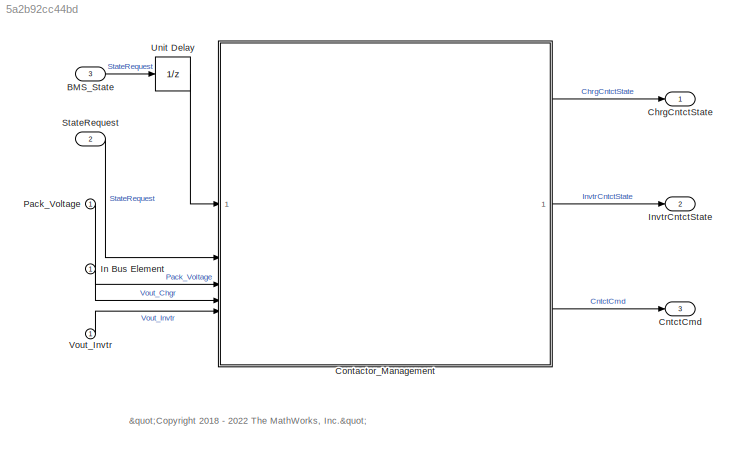
MODEL slx_5a2b92cc44bd
KIND model
BLOCK [Inport] BMS_State
  OutDataTypeStr = Enum: BMS_State_Enum
  Port = 3
  PortDimensions = 1
  SampleTime = [0.10000000000000001,0]
  SamplingMode = Sample based
  SignalType = real
BLOCK [Outport] ChrgCntctState
BLOCK [Outport] CntctCmd
  BusOutputAsStruct = on
  OutDataTypeStr = Bus: CntctCmd
  Port = 3
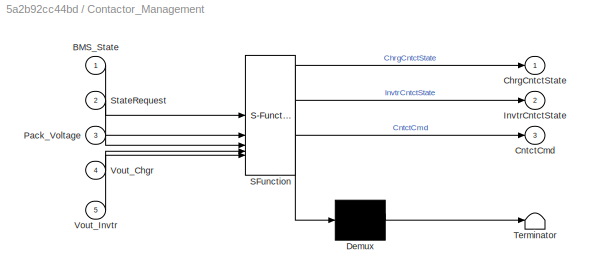
BLOCK [SubSystem] Contactor_Management
  ErrorFcn = Stateflow.Translate.translate
  PermitHierarchicalResolution = ExplicitOnly
  SFBlockType = Chart
  TreatAsAtomicUnit = on
  VariantControl = (default)
BLOCK [Demux] Contactor_Management/ Demux 
  Outputs = 1
BLOCK [S-Function] Contactor_Management/ SFunction 
  EnableBusSupport = on
  FunctionName = sf_sfun
  Parameters = CntctWaitTime,PreChrgTimeOut,PreChrgVoltRatio
  PortCounts = [5 4]
  SFcnIsStateOwnerBlock = off
  SFunctionDeploymentMode = off
  Tag = Stateflow S-Function 2
BLOCK [Terminator] Contactor_Management/ Terminator 
BLOCK [Inport] Contactor_Management/BMS_State
BLOCK [Outport] Contactor_Management/ChrgCntctState
BLOCK [Outport] Contactor_Management/CntctCmd
  Port = 3
BLOCK [Outport] Contactor_Management/InvtrCntctState
  Port = 2
BLOCK [Inport] Contactor_Management/Pack_Voltage
  Port = 3
BLOCK [Inport] Contactor_Management/StateRequest
  Port = 2
BLOCK [Inport] Contactor_Management/Vout_Chgr
  Port = 4
BLOCK [Inport] Contactor_Management/Vout_Invtr
  Port = 5
BLOCK [Inport] In Bus Element
BLOCK [Outport] InvtrCntctState
  Port = 2
BLOCK [Inport] Pack_Voltage
BLOCK [Inport] StateRequest
  OutDataTypeStr = Enum: SRE
  Port = 2
  PortDimensions = 1
  SampleTime = [0.10000000000000001,0]
  SamplingMode = Sample based
  SignalType = real
BLOCK [UnitDelay] Unit Delay
  HasFrameUpgradeWarning = on
  InitialCondition = BMS_State_Enum.BMS_Standby
  SampleTime = -1
BLOCK [Inport] Vout_Invtr
ANNOTATION (root): "<copyright redacted>
LINE BMS_State:1 -> Unit Delay:1
LINE Contactor_Management:1 -> ChrgCntctState:1
LINE Contactor_Management:2 -> InvtrCntctState:1
LINE Contactor_Management:3 -> CntctCmd:1
LINE In Bus Element:1 -> Contactor_Management:4
LINE Pack_Voltage:1 -> Contactor_Management:3
LINE StateRequest:1 -> Contactor_Management:2
LINE Unit Delay:1 -> Contactor_Management:1
LINE Vout_Invtr:1 -> Contactor_Management:5
CHART Contactor_Management states=24 transitions=24
  STATE_LABEL 'ChrgCntctSt'
  STATE_LABEL 'CloseChgrCntct'
  STATE_LABEL 'CloseNegCntct\nCntctCmd.NegCntctChgrCmd = true;'
  STATE_LABEL 'PreChrgFlt\nChrgCntctState = Contact.Fault;'
  STATE_LABEL 'ClosePreChrgRly\nCntctCmd.PreChrgRelayChgrCmd = true;'
  STATE_LABEL 'ClosePosCntct\nCntctCmd.PosCntctChgrCmd = true;'
  STATE_LABEL 'OpenPreChrgRly\nCntctCmd.PreChrgRelayChgrCmd = false;\nChrgCntctState = Contact.Close;'
  STATE_LABEL '{ChrgCntctState = Contact.Init;}'
  STATE_LABEL 'after(CntctWaitTime,msec)'
  STATE_LABEL 'after(PreChrgTimeOut,sec)\n% Check timeout'
  STATE_LABEL '[Vout_Chgr/Pack_Voltage >=PreChrgVoltRatio]'
  STATE_LABEL 'after(CntctWaitTime,msec)'
  STATE_LABEL 'OpenChgrCntct'
  STATE_LABEL 'ClosePreChrgRly\nCntctCmd.PreChrgRelayChgrCmd = true;'
  STATE_LABEL 'OpenPosCntct\nCntctCmd.PosCntctChgrCmd = false;'
  STATE_LABEL 'OpenPreChrgRly\nCntctCmd.PreChrgRelayChgrCmd = false;'
  STATE_LABEL 'OpenNegCntct\nCntctCmd.NegCntctChgrCmd = false;\nChrgCntctState = Contact.Open;'
  STATE_LABEL '{ChrgCntctState = Contact.Init;}'
  STATE_LABEL 'after(CntctWaitTime,msec) \n% Check for low current'
  STATE_LABEL 'after(CntctWaitTime,msec)'
  STATE_LABEL 'after(CntctWaitTime,msec)'
  STATE_LABEL '{ChrgCntctState = Contact.Init;}'
  STATE_LABEL '[StateRequest ~= SRE.Charging || ...\nBMS_State == BMS_State_Enum.BMS_Fault]'
  STATE_LABEL '[StateRequest == SRE.Charging && ...\nInvtrCntctState == Contact.Open && ...\nBMS_State ~= BMS_State_Enum.BMS_Fault]'
  STATE_LABEL 'CloseChgrCntct'
  STATE_LABEL 'CloseNegCntct\nCntctCmd.NegCntctChgrCmd = true;'
  STATE_LABEL 'PreChrgFlt\nChrgCntctState = Contact.Fault;'
  STATE_LABEL 'ClosePreChrgRly\nCntctCmd.PreChrgRelayChgrCmd = true;'
  STATE_LABEL 'ClosePosCntct\nCntctCmd.PosCntctChgrCmd = true;'
  STATE_LABEL 'OpenPreChrgRly\nCntctCmd.PreChrgRelayChgrCmd = false;\nChrgCntctState = Contact.Close;'
  STATE_LABEL '{ChrgCntctState = Contact.Init;}'
  STATE_LABEL 'after(CntctWaitTime,msec)'
  STATE_LABEL 'after(PreChrgTimeOut,sec)\n% Check timeout'
  STATE_LABEL '[Vout_Chgr/Pack_Voltage >=PreChrgVoltRatio]'
  STATE_LABEL 'after(CntctWaitTime,msec)'
  STATE_LABEL 'CloseNegCntct\nCntctCmd.NegCntctChgrCmd = true;'
  STATE_LABEL 'PreChrgFlt\nChrgCntctState = Contact.Fault;'
  STATE_LABEL 'ClosePreChrgRly\nCntctCmd.PreChrgRelayChgrCmd = true;'
  STATE_LABEL 'ClosePosCntct\nCntctCmd.PosCntctChgrCmd = true;'
  STATE_LABEL 'OpenPreChrgRly\nCntctCmd.PreChrgRelayChgrCmd = false;\nChrgCntctState = Contact.Close;'
CHART  states=0 transitions=0
